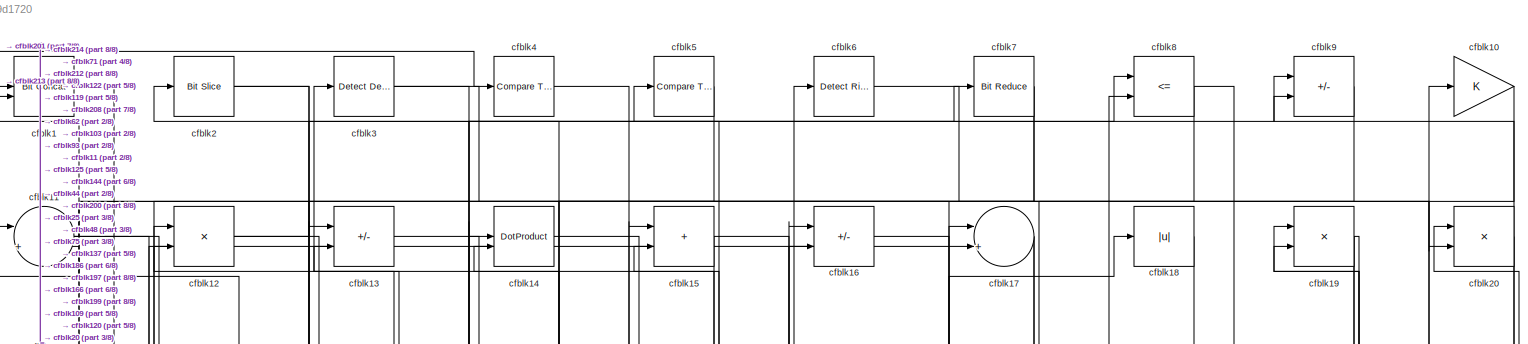
[diagram: root canvas - part 1/8, full width, top band]
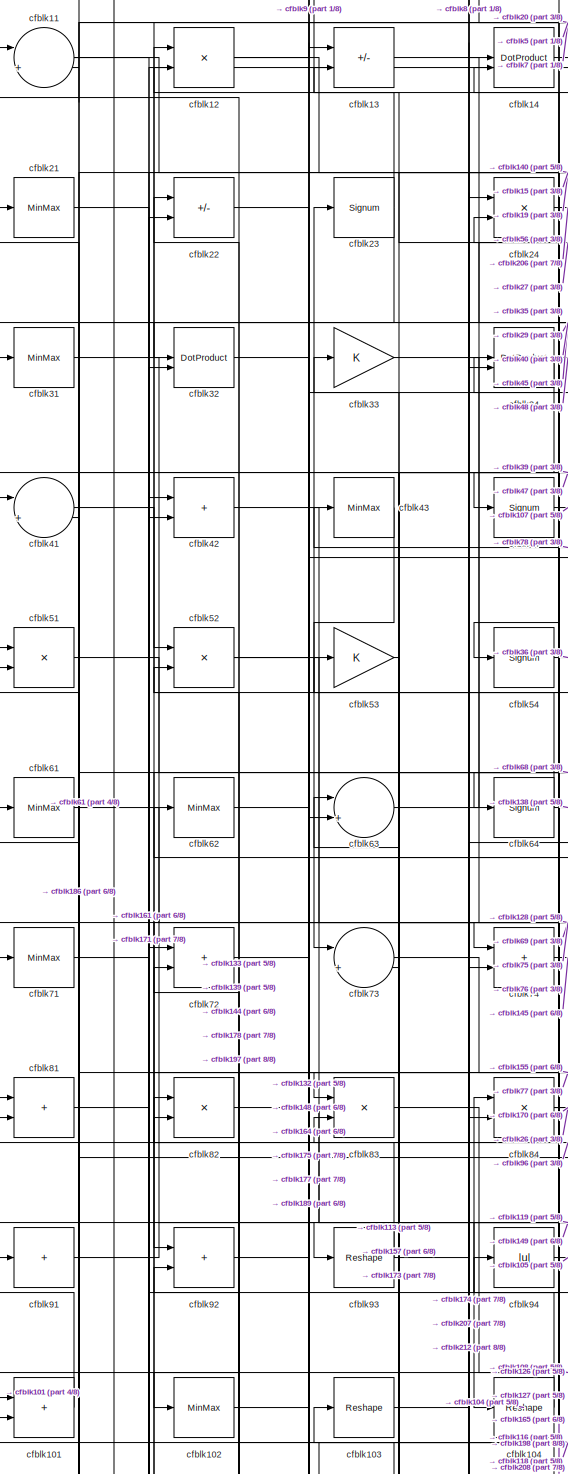
[diagram: root canvas - part 2/8, top left region]
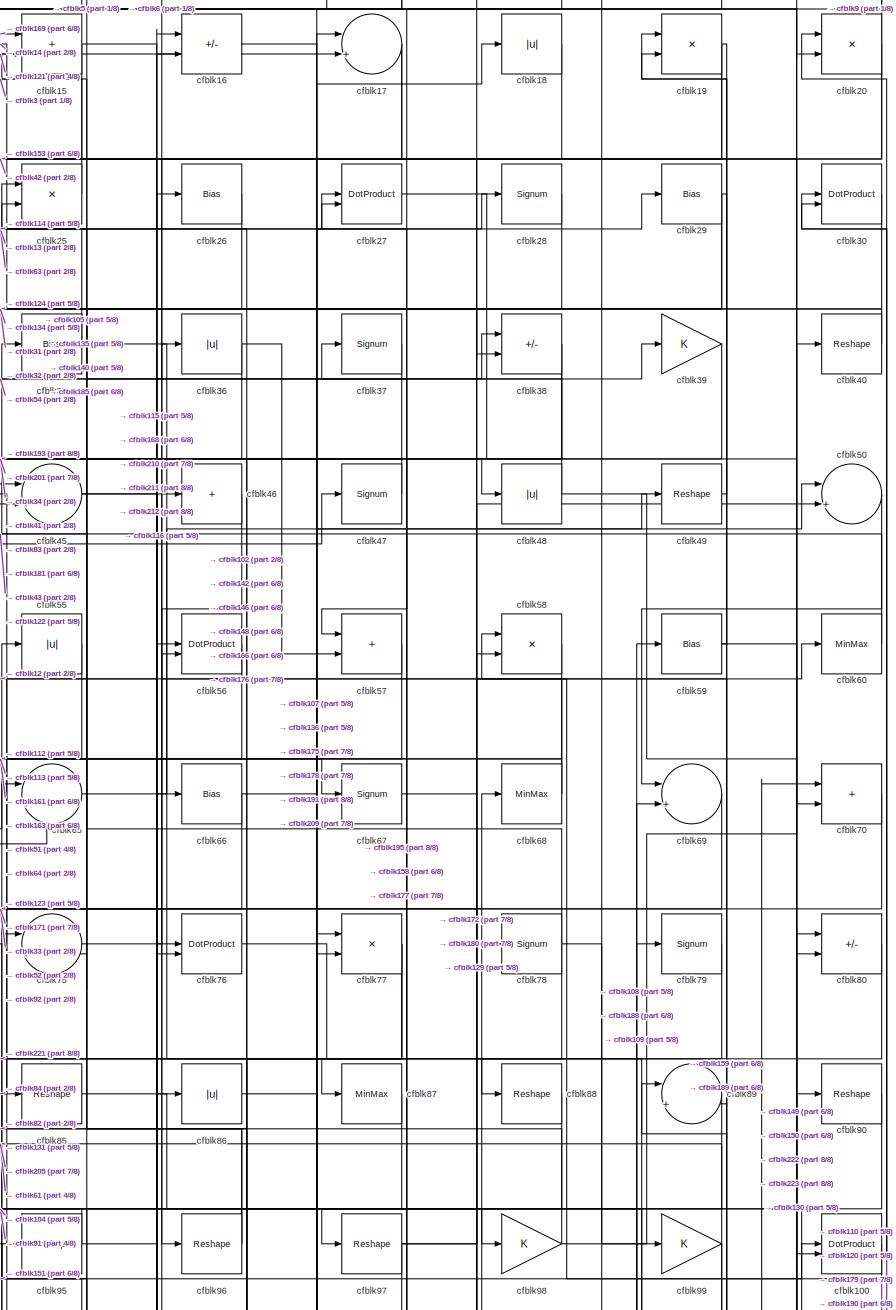
[diagram: root canvas - part 3/8, top right region]
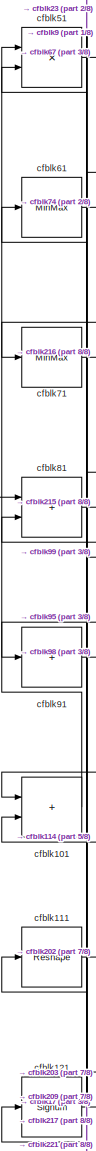
[diagram: root canvas - part 4/8, middle left region]
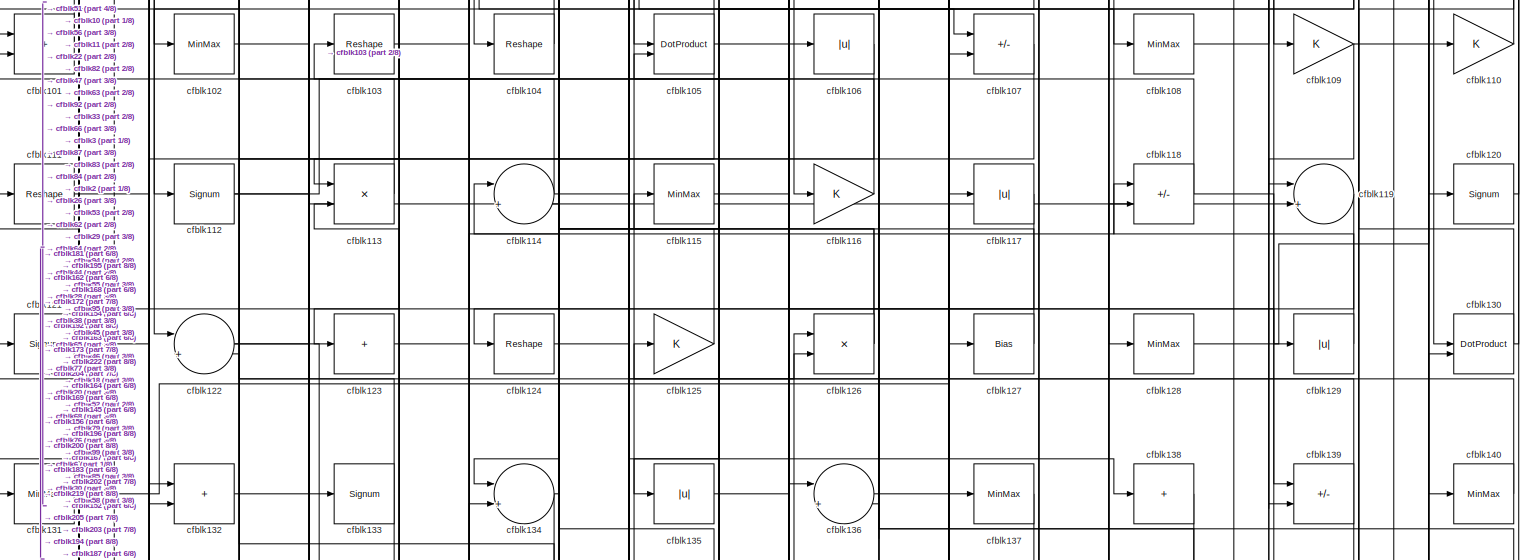
[diagram: root canvas - part 5/8, full width, middle band]
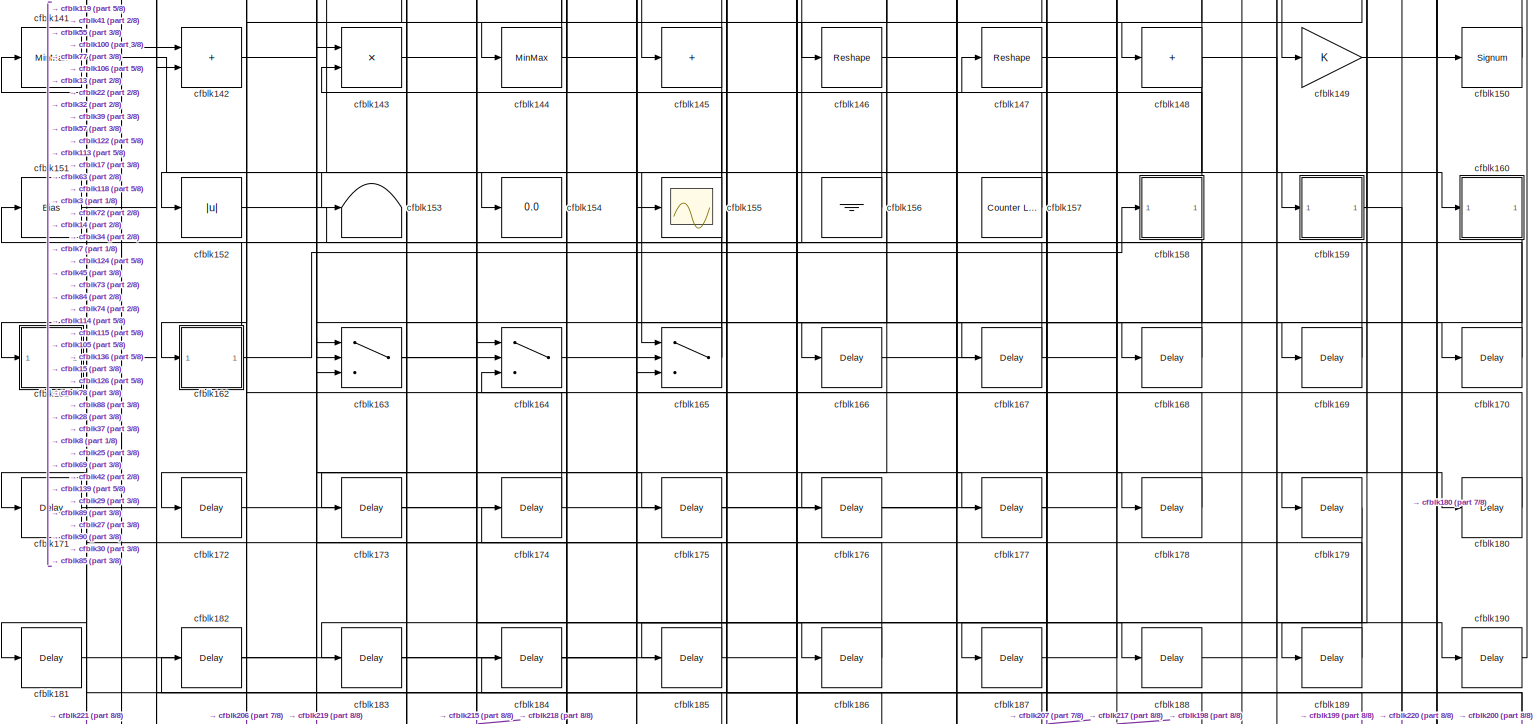
[diagram: root canvas - part 6/8, full width, bottom band]
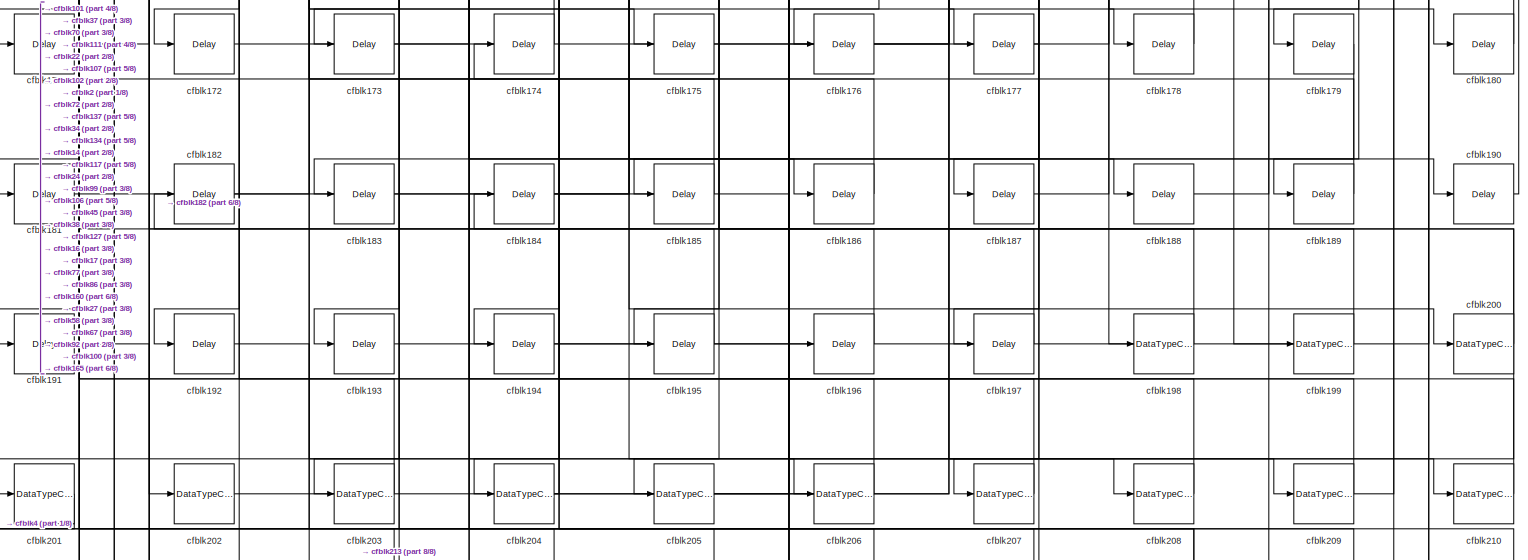
[diagram: root canvas - part 7/8, full width, bottom band]
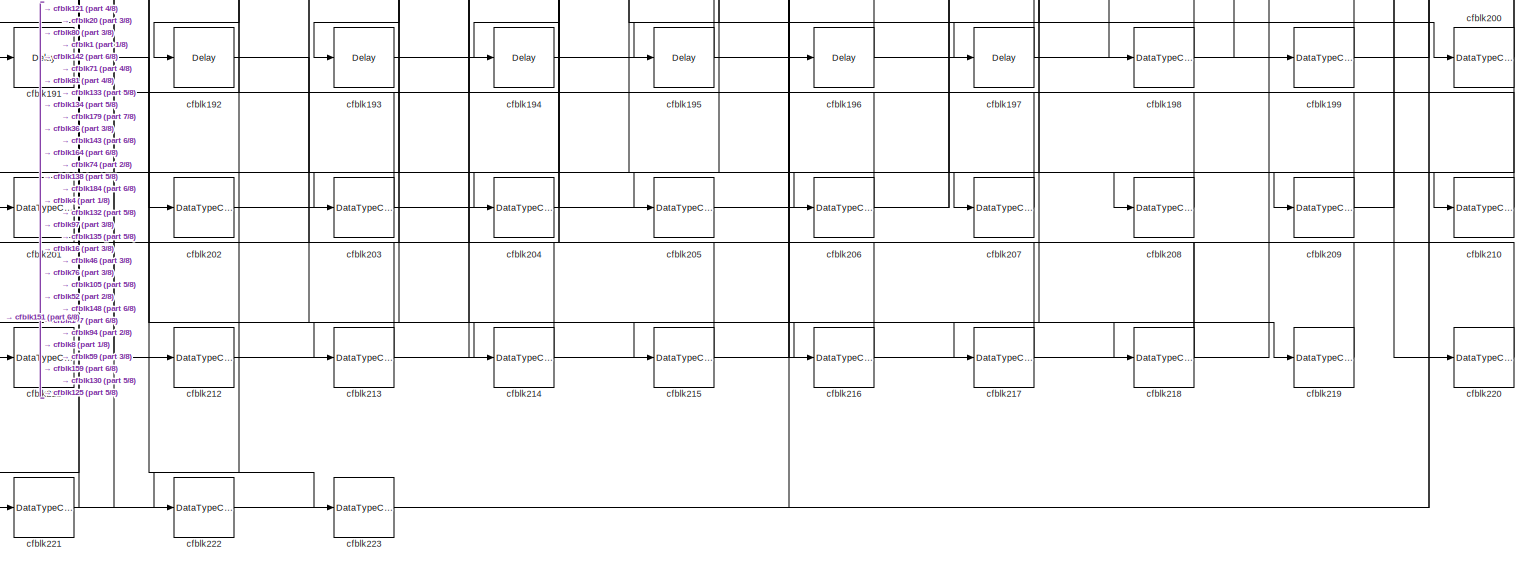
[diagram: root canvas - part 8/8, full width, bottom band]
MODEL slx_316e2a9d1720
KIND model
CONFIG AbsTol = auto
CONFIG EnableMultiTasking = off
CONFIG FixedStep = auto
CONFIG MaxStep = auto
CONFIG MinStep = auto
CONFIG RelTol = 1e-3
CONFIG SampleTimeConstraint = Unconstrained
CONFIG SolverName = VariableStepAuto
CONFIG StartTime = 0.0
CONFIG StopTime = 10.0
BLOCK [Reference] cfblk1  REF=hdlsllib/Logic and Bit
Operations/Bit Concat
  SourceBlock = hdlsllib/Logic and Bit\nOperations/Bit Concat
  SourceType = Bit Concat
BLOCK [Gain] cfblk10
BLOCK [DotProduct] cfblk100
  OutDataTypeStr = Inherit: Inherit via internal rule
BLOCK [Sum] cfblk101
  IconShape = rectangular
BLOCK [MinMax] cfblk102
BLOCK [Reshape] cfblk103
BLOCK [Reshape] cfblk104
BLOCK [DotProduct] cfblk105
  OutDataTypeStr = Inherit: Inherit via internal rule
BLOCK [Abs] cfblk106
  SaturateOnIntegerOverflow = off
BLOCK [Sum] cfblk107
  IconShape = rectangular
  Inputs = +-
BLOCK [MinMax] cfblk108
BLOCK [Gain] cfblk109
BLOCK [Sum] cfblk11
  Inputs = |++
BLOCK [Gain] cfblk110
BLOCK [Reshape] cfblk111
BLOCK [Signum] cfblk112
BLOCK [Product] cfblk113
  Inputs = */
  RndMeth = Zero
  SaturateOnIntegerOverflow = on
BLOCK [Sum] cfblk114
  Inputs = |++
BLOCK [MinMax] cfblk115
BLOCK [Gain] cfblk116
BLOCK [Abs] cfblk117
  SaturateOnIntegerOverflow = off
BLOCK [Sum] cfblk118
  IconShape = rectangular
  Inputs = +-
BLOCK [Sum] cfblk119
  Inputs = |++
BLOCK [Product] cfblk12
  Inputs = */
  RndMeth = Zero
  SaturateOnIntegerOverflow = on
BLOCK [Signum] cfblk120
BLOCK [Signum] cfblk121
BLOCK [Sum] cfblk122
  Inputs = |++
BLOCK [Sum] cfblk123
  IconShape = rectangular
  Inputs = +
BLOCK [Reshape] cfblk124
BLOCK [Gain] cfblk125
BLOCK [Product] cfblk126
  Inputs = */
  RndMeth = Zero
  SaturateOnIntegerOverflow = on
BLOCK [Bias] cfblk127
  Bias = 0.0
  SaturateOnIntegerOverflow = off
BLOCK [MinMax] cfblk128
BLOCK [Abs] cfblk129
  SaturateOnIntegerOverflow = off
BLOCK [Sum] cfblk13
  IconShape = rectangular
  Inputs = +-
BLOCK [DotProduct] cfblk130
  OutDataTypeStr = Inherit: Inherit via internal rule
BLOCK [MinMax] cfblk131
BLOCK [Sum] cfblk132
  IconShape = rectangular
BLOCK [Signum] cfblk133
BLOCK [Sum] cfblk134
  Inputs = |++
BLOCK [Abs] cfblk135
  SaturateOnIntegerOverflow = off
BLOCK [Sum] cfblk136
  Inputs = |++
BLOCK [MinMax] cfblk137
BLOCK [Sum] cfblk138
  IconShape = rectangular
  Inputs = +
BLOCK [Sum] cfblk139
  IconShape = rectangular
  Inputs = +-
BLOCK [DotProduct] cfblk14
  OutDataTypeStr = Inherit: Inherit via internal rule
BLOCK [MinMax] cfblk140
BLOCK [MinMax] cfblk141
BLOCK [Sum] cfblk142
  IconShape = rectangular
BLOCK [Product] cfblk143
  Inputs = */
  RndMeth = Zero
  SaturateOnIntegerOverflow = on
BLOCK [MinMax] cfblk144
BLOCK [Sum] cfblk145
  IconShape = rectangular
  Inputs = +
BLOCK [Reshape] cfblk146
BLOCK [Reshape] cfblk147
BLOCK [Sum] cfblk148
  IconShape = rectangular
  Inputs = +
BLOCK [Gain] cfblk149
BLOCK [Sum] cfblk15
  IconShape = rectangular
BLOCK [Signum] cfblk150
BLOCK [Bias] cfblk151
  Bias = 0.0
  SaturateOnIntegerOverflow = off
BLOCK [Abs] cfblk152
  SaturateOnIntegerOverflow = off
BLOCK [Terminator] cfblk153
BLOCK [Display] cfblk154
  Decimation = 1
BLOCK [Scope] cfblk155
  Floating = off
  NumInputPorts = 1
  ScopeSpecificationString = Simulink.scopes.TimeScopeBlockCfg('CurrentConfiguration', extmgr.ConfigurationSet(extmgr.Configuration('Core','General UI',true),extmgr.Configuration('Core','Source UI',true),extmgr.Configuration('Sources','WiredSimulink',true,'DataLoggingVariableName','ScopeData2','DataLoggingSaveFormat','Array','DataLoggingLimitDataPoints',true,'DataLoggingDecimation','1'),extmgr.Configuration('Visuals','Time Do...<+868ch>
BLOCK [Ground] cfblk156
BLOCK [Reference] cfblk157  REF=hdlsllib/Sources/Counter
Limited
  SourceBlock = hdlsllib/Sources/Counter\nLimited
  SourceType = Counter Limited
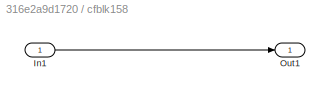
BLOCK [SubSystem] cfblk158
  LibrarySourceBlock = hdlsllib/Ports &\nSubsystems/Subsystem
BLOCK [Inport] cfblk158/In1
BLOCK [Outport] cfblk158/Out1
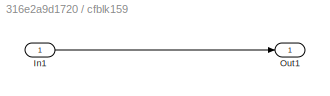
BLOCK [SubSystem] cfblk159
  LibrarySourceBlock = hdlsllib/Ports &\nSubsystems/Subsystem
BLOCK [Inport] cfblk159/In1
BLOCK [Outport] cfblk159/Out1
BLOCK [Sum] cfblk16
  IconShape = rectangular
  Inputs = +-
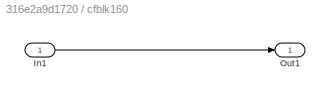
BLOCK [SubSystem] cfblk160
  LibrarySourceBlock = hdlsllib/Ports &\nSubsystems/Subsystem
BLOCK [Inport] cfblk160/In1
BLOCK [Outport] cfblk160/Out1
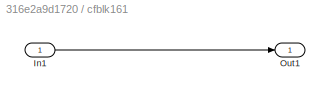
BLOCK [SubSystem] cfblk161
  LibrarySourceBlock = hdlsllib/Ports &\nSubsystems/Subsystem
BLOCK [Inport] cfblk161/In1
BLOCK [Outport] cfblk161/Out1
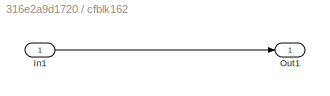
BLOCK [SubSystem] cfblk162
  LibrarySourceBlock = hdlsllib/Ports &\nSubsystems/Subsystem
BLOCK [Inport] cfblk162/In1
BLOCK [Outport] cfblk162/Out1
BLOCK [Switch] cfblk163
  InputSameDT = off
  SaturateOnIntegerOverflow = off
BLOCK [Switch] cfblk164
  InputSameDT = off
  SaturateOnIntegerOverflow = off
BLOCK [Switch] cfblk165
  InputSameDT = off
  SaturateOnIntegerOverflow = off
BLOCK [Delay] cfblk166
  InputPortMap = u0
  SampleTime = 1
BLOCK [Delay] cfblk167
  InputPortMap = u0
  SampleTime = 1
BLOCK [Delay] cfblk168
  InputPortMap = u0
  SampleTime = 1
BLOCK [Delay] cfblk169
  InputPortMap = u0
  SampleTime = 1
BLOCK [Sum] cfblk17
  Inputs = |++
BLOCK [Delay] cfblk170
  InputPortMap = u0
  SampleTime = 1
BLOCK [Delay] cfblk171
  InputPortMap = u0
  SampleTime = 1
BLOCK [Delay] cfblk172
  InputPortMap = u0
  SampleTime = 1
BLOCK [Delay] cfblk173
  InputPortMap = u0
  SampleTime = 1
BLOCK [Delay] cfblk174
  InputPortMap = u0
  SampleTime = 1
BLOCK [Delay] cfblk175
  InputPortMap = u0
  SampleTime = 1
BLOCK [Delay] cfblk176
  InputPortMap = u0
  SampleTime = 1
BLOCK [Delay] cfblk177
  InputPortMap = u0
  SampleTime = 1
BLOCK [Delay] cfblk178
  InputPortMap = u0
  SampleTime = 1
BLOCK [Delay] cfblk179
  InputPortMap = u0
  SampleTime = 1
BLOCK [Abs] cfblk18
  SaturateOnIntegerOverflow = off
BLOCK [Delay] cfblk180
  InputPortMap = u0
  SampleTime = 1
BLOCK [Delay] cfblk181
  InputPortMap = u0
  SampleTime = 1
BLOCK [Delay] cfblk182
  InputPortMap = u0
  SampleTime = 1
BLOCK [Delay] cfblk183
  InputPortMap = u0
  SampleTime = 1
BLOCK [Delay] cfblk184
  InputPortMap = u0
  SampleTime = 1
BLOCK [Delay] cfblk185
  InputPortMap = u0
  SampleTime = 1
BLOCK [Delay] cfblk186
  InputPortMap = u0
  SampleTime = 1
BLOCK [Delay] cfblk187
  InputPortMap = u0
  SampleTime = 1
BLOCK [Delay] cfblk188
  InputPortMap = u0
  SampleTime = 1
BLOCK [Delay] cfblk189
  InputPortMap = u0
  SampleTime = 1
BLOCK [Product] cfblk19
  Inputs = */
  RndMeth = Zero
  SaturateOnIntegerOverflow = on
BLOCK [Delay] cfblk190
  InputPortMap = u0
  SampleTime = 1
BLOCK [Delay] cfblk191
  InputPortMap = u0
  SampleTime = 1
BLOCK [Delay] cfblk192
  InputPortMap = u0
  SampleTime = 1
BLOCK [Delay] cfblk193
  InputPortMap = u0
  SampleTime = 1
BLOCK [Delay] cfblk194
  InputPortMap = u0
  SampleTime = 1
BLOCK [Delay] cfblk195
  InputPortMap = u0
  SampleTime = 1
BLOCK [Delay] cfblk196
  InputPortMap = u0
  SampleTime = 1
BLOCK [Delay] cfblk197
  InputPortMap = u0
  SampleTime = 1
BLOCK [DataTypeConversion] cfblk198
  OutDataTypeStr = uint8
  RndMeth = Floor
  SaturateOnIntegerOverflow = off
BLOCK [DataTypeConversion] cfblk199
  OutDataTypeStr = uint8
  RndMeth = Floor
  SaturateOnIntegerOverflow = off
BLOCK [Reference] cfblk2  REF=hdlsllib/Logic and Bit
Operations/Bit Slice
  SourceBlock = hdlsllib/Logic and Bit\nOperations/Bit Slice
  SourceType = Bit Slice
BLOCK [Product] cfblk20
  Inputs = */
  RndMeth = Zero
  SaturateOnIntegerOverflow = on
BLOCK [DataTypeConversion] cfblk200
  RndMeth = Floor
  SaturateOnIntegerOverflow = off
BLOCK [DataTypeConversion] cfblk201
  OutDataTypeStr = uint8
  RndMeth = Floor
  SaturateOnIntegerOverflow = off
BLOCK [DataTypeConversion] cfblk202
  OutDataTypeStr = uint8
  RndMeth = Floor
  SaturateOnIntegerOverflow = off
BLOCK [DataTypeConversion] cfblk203
  OutDataTypeStr = uint8
  RndMeth = Floor
  SaturateOnIntegerOverflow = off
BLOCK [DataTypeConversion] cfblk204
  RndMeth = Floor
  SaturateOnIntegerOverflow = off
BLOCK [DataTypeConversion] cfblk205
  OutDataTypeStr = uint8
  RndMeth = Floor
  SaturateOnIntegerOverflow = off
BLOCK [DataTypeConversion] cfblk206
  OutDataTypeStr = uint8
  RndMeth = Floor
  SaturateOnIntegerOverflow = off
BLOCK [DataTypeConversion] cfblk207
  OutDataTypeStr = uint8
  RndMeth = Floor
  SaturateOnIntegerOverflow = off
BLOCK [DataTypeConversion] cfblk208
  OutDataTypeStr = uint8
  RndMeth = Floor
  SaturateOnIntegerOverflow = off
BLOCK [DataTypeConversion] cfblk209
  RndMeth = Floor
  SaturateOnIntegerOverflow = off
BLOCK [MinMax] cfblk21
BLOCK [DataTypeConversion] cfblk210
  OutDataTypeStr = uint8
  RndMeth = Floor
  SaturateOnIntegerOverflow = off
BLOCK [DataTypeConversion] cfblk211
  OutDataTypeStr = uint8
  RndMeth = Floor
  SaturateOnIntegerOverflow = off
BLOCK [DataTypeConversion] cfblk212
  RndMeth = Floor
  SaturateOnIntegerOverflow = off
BLOCK [DataTypeConversion] cfblk213
  OutDataTypeStr = uint8
  RndMeth = Floor
  SaturateOnIntegerOverflow = off
BLOCK [DataTypeConversion] cfblk214
  OutDataTypeStr = uint8
  RndMeth = Floor
  SaturateOnIntegerOverflow = off
BLOCK [DataTypeConversion] cfblk215
  OutDataTypeStr = uint8
  RndMeth = Floor
  SaturateOnIntegerOverflow = off
BLOCK [DataTypeConversion] cfblk216
  OutDataTypeStr = uint8
  RndMeth = Floor
  SaturateOnIntegerOverflow = off
BLOCK [DataTypeConversion] cfblk217
  OutDataTypeStr = uint8
  RndMeth = Floor
  SaturateOnIntegerOverflow = off
BLOCK [DataTypeConversion] cfblk218
  RndMeth = Floor
  SaturateOnIntegerOverflow = off
BLOCK [DataTypeConversion] cfblk219
  OutDataTypeStr = uint8
  RndMeth = Floor
  SaturateOnIntegerOverflow = off
BLOCK [Sum] cfblk22
  IconShape = rectangular
  Inputs = +-
BLOCK [DataTypeConversion] cfblk220
  OutDataTypeStr = uint8
  RndMeth = Floor
  SaturateOnIntegerOverflow = off
BLOCK [DataTypeConversion] cfblk221
  RndMeth = Floor
  SaturateOnIntegerOverflow = off
BLOCK [DataTypeConversion] cfblk222
  OutDataTypeStr = uint8
  RndMeth = Floor
  SaturateOnIntegerOverflow = off
BLOCK [DataTypeConversion] cfblk223
  OutDataTypeStr = uint8
  RndMeth = Floor
  SaturateOnIntegerOverflow = off
BLOCK [Signum] cfblk23
BLOCK [Product] cfblk24
  Inputs = */
  RndMeth = Zero
  SaturateOnIntegerOverflow = on
BLOCK [Product] cfblk25
  Inputs = */
  RndMeth = Zero
  SaturateOnIntegerOverflow = on
BLOCK [Bias] cfblk26
  Bias = 0.0
  SaturateOnIntegerOverflow = off
BLOCK [DotProduct] cfblk27
  OutDataTypeStr = Inherit: Inherit via internal rule
BLOCK [Signum] cfblk28
BLOCK [Bias] cfblk29
  Bias = 0.0
  SaturateOnIntegerOverflow = off
BLOCK [Reference] cfblk3  REF=simulink/Logic and Bit
Operations/Detect
Decrease
  LibrarySourceBlock = hdlsllib/Logic and Bit\nOperations/Detect\nDecrease
  SourceBlock = simulink/Logic and Bit\nOperations/Detect\nDecrease
  SourceType = Detect Decrease
BLOCK [DotProduct] cfblk30
  OutDataTypeStr = Inherit: Inherit via internal rule
BLOCK [MinMax] cfblk31
BLOCK [DotProduct] cfblk32
  OutDataTypeStr = Inherit: Inherit via internal rule
BLOCK [Gain] cfblk33
BLOCK [DotProduct] cfblk34
  OutDataTypeStr = Inherit: Inherit via internal rule
BLOCK [Bias] cfblk35
  Bias = 0.0
  SaturateOnIntegerOverflow = off
BLOCK [Abs] cfblk36
  SaturateOnIntegerOverflow = off
BLOCK [Signum] cfblk37
BLOCK [Sum] cfblk38
  IconShape = rectangular
  Inputs = +-
BLOCK [Gain] cfblk39
BLOCK [Reference] cfblk4  REF=hdlsllib/Logic and Bit
Operations/Compare
To Zero
  SourceBlock = hdlsllib/Logic and Bit\nOperations/Compare\nTo Zero
  SourceType = Compare To Zero
BLOCK [Reshape] cfblk40
BLOCK [Sum] cfblk41
  Inputs = |++
BLOCK [Sum] cfblk42
  IconShape = rectangular
BLOCK [MinMax] cfblk43
BLOCK [Signum] cfblk44
BLOCK [Sum] cfblk45
  Inputs = |++
BLOCK [Sum] cfblk46
  IconShape = rectangular
  Inputs = +
BLOCK [Signum] cfblk47
BLOCK [Abs] cfblk48
  SaturateOnIntegerOverflow = off
BLOCK [Reshape] cfblk49
BLOCK [Reference] cfblk5  REF=hdlsllib/Logic and Bit
Operations/Compare
To Constant
  SourceBlock = hdlsllib/Logic and Bit\nOperations/Compare\nTo Constant
  SourceType = Compare To Constant
BLOCK [Sum] cfblk50
  Inputs = |++
BLOCK [Product] cfblk51
  Inputs = */
  RndMeth = Zero
  SaturateOnIntegerOverflow = on
BLOCK [Product] cfblk52
  Inputs = */
  RndMeth = Zero
  SaturateOnIntegerOverflow = on
BLOCK [Gain] cfblk53
BLOCK [Signum] cfblk54
BLOCK [Abs] cfblk55
  SaturateOnIntegerOverflow = off
BLOCK [DotProduct] cfblk56
  OutDataTypeStr = Inherit: Inherit via internal rule
BLOCK [Sum] cfblk57
  IconShape = rectangular
BLOCK [Product] cfblk58
  Inputs = */
  RndMeth = Zero
  SaturateOnIntegerOverflow = on
BLOCK [Bias] cfblk59
  Bias = 0.0
  SaturateOnIntegerOverflow = off
BLOCK [Reference] cfblk6  REF=hdlsllib/Logic and Bit
Operations/Detect Rise
Nonnegative
  SourceBlock = hdlsllib/Logic and Bit\nOperations/Detect Rise\nNonnegative
  SourceType = Detect Rise Nonnegative
BLOCK [MinMax] cfblk60
BLOCK [MinMax] cfblk61
BLOCK [MinMax] cfblk62
BLOCK [Sum] cfblk63
  Inputs = |++
BLOCK [Signum] cfblk64
BLOCK [Sum] cfblk65
  Inputs = |++
BLOCK [Bias] cfblk66
  Bias = 0.0
  SaturateOnIntegerOverflow = off
BLOCK [Signum] cfblk67
BLOCK [MinMax] cfblk68
BLOCK [Sum] cfblk69
  Inputs = |++
BLOCK [Reference] cfblk7  REF=hdlsllib/Logic and Bit
Operations/Bit Reduce
  SourceBlock = hdlsllib/Logic and Bit\nOperations/Bit Reduce
  SourceType = Bit Reduce
BLOCK [Sum] cfblk70
  IconShape = rectangular
BLOCK [MinMax] cfblk71
BLOCK [Sum] cfblk72
  IconShape = rectangular
BLOCK [Sum] cfblk73
  Inputs = |++
BLOCK [Sum] cfblk74
  IconShape = rectangular
BLOCK [Sum] cfblk75
  Inputs = |++
BLOCK [DotProduct] cfblk76
  OutDataTypeStr = Inherit: Inherit via internal rule
BLOCK [Product] cfblk77
  Inputs = */
  RndMeth = Zero
  SaturateOnIntegerOverflow = on
BLOCK [Signum] cfblk78
BLOCK [Signum] cfblk79
BLOCK [RelationalOperator] cfblk8
  InputSameDT = off
  Operator = <=
  OutDataTypeStr = boolean
BLOCK [Sum] cfblk80
  IconShape = rectangular
  Inputs = +-
BLOCK [Sum] cfblk81
  IconShape = rectangular
BLOCK [Product] cfblk82
  Inputs = */
  RndMeth = Zero
  SaturateOnIntegerOverflow = on
BLOCK [Product] cfblk83
  Inputs = */
  RndMeth = Zero
  SaturateOnIntegerOverflow = on
BLOCK [Product] cfblk84
  Inputs = */
  RndMeth = Zero
  SaturateOnIntegerOverflow = on
BLOCK [Reshape] cfblk85
BLOCK [Abs] cfblk86
  SaturateOnIntegerOverflow = off
BLOCK [MinMax] cfblk87
BLOCK [Reshape] cfblk88
BLOCK [Sum] cfblk89
  Inputs = |++
BLOCK [Sum] cfblk9
  IconShape = rectangular
  Inputs = +-
BLOCK [Reshape] cfblk90
BLOCK [Sum] cfblk91
  IconShape = rectangular
  Inputs = +
BLOCK [Sum] cfblk92
  IconShape = rectangular
BLOCK [Reshape] cfblk93
BLOCK [Abs] cfblk94
  SaturateOnIntegerOverflow = off
BLOCK [Reshape] cfblk95
BLOCK [Reshape] cfblk96
BLOCK [Reshape] cfblk97
BLOCK [Gain] cfblk98
BLOCK [Gain] cfblk99
LINE cfblk100:1 -> cfblk179:1
LINE cfblk101:1 -> cfblk51:1
LINE cfblk102:1 -> cfblk175:1
LINE cfblk103:1 -> cfblk8:1
LINE cfblk104:1 -> cfblk84:1
NET cfblk105:1 -> cfblk132:2, cfblk167:1, cfblk55:1
LINE cfblk106:1 -> cfblk162:1
LINE cfblk107:1 -> cfblk172:1
LINE cfblk108:1 -> cfblk79:1
NET cfblk109:1 -> cfblk10:1, cfblk139:2
LINE cfblk10:1 -> cfblk122:1
LINE cfblk110:1 -> cfblk58:1
LINE cfblk111:1 -> cfblk202:1
NET cfblk112:1 -> cfblk65:2, cfblk66:1
LINE cfblk113:1 -> cfblk103:1
NET cfblk114:1 -> cfblk29:1, cfblk51:2
LINE cfblk115:1 -> cfblk38:1
LINE cfblk116:1 -> cfblk33:1
LINE cfblk117:1 -> cfblk204:1
NET cfblk118:1 -> cfblk139:1, cfblk82:1
LINE cfblk119:1 -> cfblk181:1
NET cfblk11:1 -> cfblk140:1, cfblk72:1
LINE cfblk120:1 -> cfblk20:1
LINE cfblk121:1 -> cfblk17:2
NET cfblk122:1 -> cfblk154:1, cfblk47:1
LINE cfblk123:1 -> cfblk65:1
LINE cfblk124:1 -> cfblk169:1
LINE cfblk125:1 -> cfblk2:1
NET cfblk126:1 -> cfblk53:1, cfblk83:2
LINE cfblk127:1 -> cfblk62:1
LINE cfblk128:1 -> cfblk110:1
LINE cfblk129:1 -> cfblk68:1
NET cfblk12:1 -> cfblk20:2, cfblk56:1
NET cfblk130:1 -> cfblk30:1, cfblk56:2
LINE cfblk131:1 -> cfblk77:2
LINE cfblk132:1 -> cfblk63:2
NET cfblk133:1 -> cfblk192:1, cfblk22:1
NET cfblk134:1 -> cfblk114:2, cfblk222:1
LINE cfblk135:1 -> cfblk219:1
LINE cfblk136:1 -> cfblk18:1
LINE cfblk137:1 -> cfblk203:1
LINE cfblk138:1 -> cfblk194:1
NET cfblk139:1 -> cfblk11:1, cfblk187:1
LINE cfblk13:1 -> cfblk45:1
LINE cfblk140:1 -> cfblk95:1
LINE cfblk141:1 -> cfblk159:1
LINE cfblk142:1 -> cfblk39:1
LINE cfblk143:1 -> cfblk218:1
NET cfblk144:1 -> cfblk190:1, cfblk72:2
NET cfblk145:1 -> cfblk114:1, cfblk152:1
LINE cfblk146:1 -> cfblk28:1
LINE cfblk147:1 -> cfblk198:1
NET cfblk148:1 -> cfblk160:1, cfblk165:1, cfblk217:1, cfblk25:1
LINE cfblk149:1 -> cfblk90:1
LINE cfblk14:1 -> cfblk78:1
LINE cfblk150:1 -> cfblk85:1
LINE cfblk151:1 -> cfblk100:1
LINE cfblk152:1 -> cfblk126:1
LINE cfblk156:1 -> cfblk115:1
LINE cfblk157:1 -> cfblk63:1
LINE cfblk158/In1:1 -> cfblk158/Out1:1
NET cfblk158:1 -> cfblk183:1, cfblk37:1
LINE cfblk159/In1:1 -> cfblk159/Out1:1
NET cfblk159:1 -> cfblk220:1, cfblk89:1
NET cfblk15:1 -> cfblk168:1, cfblk42:2
LINE cfblk160/In1:1 -> cfblk160/Out1:1
LINE cfblk160:1 -> cfblk207:1
LINE cfblk161/In1:1 -> cfblk161/Out1:1
LINE cfblk161:1 -> cfblk32:2
LINE cfblk162/In1:1 -> cfblk162/Out1:1
NET cfblk162:1 -> cfblk141:1, cfblk158:1
NET cfblk163:1 -> cfblk118:1, cfblk188:1
LINE cfblk164:1 -> cfblk126:2
NET cfblk165:1 -> cfblk14:2, cfblk34:1
LINE cfblk166:1 -> cfblk8:2
LINE cfblk167:1 -> cfblk113:2
LINE cfblk168:1 -> cfblk122:2
LINE cfblk169:1 -> cfblk15:1
LINE cfblk16:1 -> cfblk209:1
LINE cfblk170:1 -> cfblk42:1
LINE cfblk171:1 -> cfblk22:2
LINE cfblk172:1 -> cfblk58:2
LINE cfblk173:1 -> cfblk134:2
LINE cfblk174:1 -> cfblk14:1
LINE cfblk175:1 -> cfblk17:1
LINE cfblk176:1 -> cfblk77:1
LINE cfblk177:1 -> cfblk27:2
LINE cfblk178:1 -> cfblk92:2
LINE cfblk179:1 -> cfblk213:1
NET cfblk17:1 -> cfblk153:1, cfblk96:1
LINE cfblk180:1 -> cfblk165:2
LINE cfblk181:1 -> cfblk45:2
LINE cfblk182:1 -> cfblk163:3
LINE cfblk183:1 -> cfblk136:1
LINE cfblk184:1 -> cfblk165:3
LINE cfblk185:1 -> cfblk163:1
LINE cfblk186:1 -> cfblk41:2
LINE cfblk187:1 -> cfblk118:2
LINE cfblk188:1 -> cfblk69:2
LINE cfblk189:1 -> cfblk13:1
LINE cfblk18:1 -> cfblk38:2
LINE cfblk190:1 -> cfblk30:2
LINE cfblk191:1 -> cfblk223:1
LINE cfblk192:1 -> cfblk214:1
LINE cfblk193:1 -> cfblk76:1
LINE cfblk194:1 -> cfblk130:2
LINE cfblk195:1 -> cfblk132:1
LINE cfblk196:1 -> cfblk105:2
LINE cfblk197:1 -> cfblk52:2
LINE cfblk198:1 -> cfblk94:1
LINE cfblk199:1 -> cfblk147:1
NET cfblk19:1 -> cfblk34:2, cfblk54:1, cfblk89:2
LINE cfblk1:1 -> cfblk212:1
NET cfblk200:1 -> cfblk125:1, cfblk151:1, cfblk211:1
LINE cfblk201:1 -> cfblk4:1
LINE cfblk202:1 -> cfblk106:1
LINE cfblk203:1 -> cfblk111:1
NET cfblk204:1 -> cfblk127:1, cfblk174:1
LINE cfblk205:1 -> cfblk117:1
LINE cfblk206:1 -> cfblk182:1
LINE cfblk207:1 -> cfblk24:1
LINE cfblk208:1 -> cfblk24:2
NET cfblk209:1 -> cfblk101:2, cfblk70:1
NET cfblk20:1 -> cfblk107:2, cfblk191:1, cfblk9:2
LINE cfblk210:1 -> cfblk16:1
LINE cfblk211:1 -> cfblk16:2
NET cfblk212:1 -> cfblk46:1, cfblk59:1, cfblk74:2
LINE cfblk213:1 -> cfblk1:1
LINE cfblk214:1 -> cfblk1:2
LINE cfblk215:1 -> cfblk164:1
LINE cfblk216:1 -> cfblk81:1
LINE cfblk217:1 -> cfblk81:2
NET cfblk218:1 -> cfblk164:3, cfblk184:1
LINE cfblk219:1 -> cfblk143:1
LINE cfblk21:1 -> cfblk84:2
LINE cfblk220:1 -> cfblk143:2
NET cfblk221:1 -> cfblk121:1, cfblk142:1, cfblk196:1
LINE cfblk222:1 -> cfblk80:1
LINE cfblk223:1 -> cfblk80:2
LINE cfblk22:1 -> cfblk148:1
NET cfblk23:1 -> cfblk101:1, cfblk12:2
LINE cfblk24:1 -> cfblk206:1
LINE cfblk25:1 -> cfblk3:1
LINE cfblk26:1 -> cfblk124:1
LINE cfblk27:1 -> cfblk150:1
LINE cfblk28:1 -> cfblk135:1
NET cfblk29:1 -> cfblk189:1, cfblk31:1, cfblk75:2
NET cfblk2:1 -> cfblk119:2, cfblk208:1
LINE cfblk30:1 -> cfblk134:1
LINE cfblk31:1 -> cfblk93:1
LINE cfblk32:1 -> cfblk164:2
LINE cfblk33:1 -> cfblk76:2
NET cfblk34:1 -> cfblk173:1, cfblk48:1
NET cfblk35:1 -> cfblk13:2, cfblk87:1
NET cfblk36:1 -> cfblk193:1, cfblk57:2
LINE cfblk37:1 -> cfblk201:1
NET cfblk38:1 -> cfblk176:1, cfblk57:1
LINE cfblk39:1 -> cfblk83:1
NET cfblk3:1 -> cfblk137:1, cfblk186:1
LINE cfblk40:1 -> cfblk32:1
LINE cfblk41:1 -> cfblk52:1
LINE cfblk42:1 -> cfblk149:1
LINE cfblk43:1 -> cfblk73:1
LINE cfblk44:1 -> cfblk107:1
NET cfblk45:1 -> cfblk129:1, cfblk210:1
LINE cfblk46:1 -> cfblk116:1
LINE cfblk47:1 -> cfblk41:1
NET cfblk48:1 -> cfblk5:1, cfblk70:2
LINE cfblk49:1 -> cfblk19:1
LINE cfblk4:1 -> cfblk200:1
LINE cfblk50:1 -> cfblk69:1
LINE cfblk51:1 -> cfblk67:1
NET cfblk52:1 -> cfblk128:1, cfblk75:1
LINE cfblk53:1 -> cfblk73:2
LINE cfblk54:1 -> cfblk36:1
LINE cfblk55:1 -> cfblk161:1
LINE cfblk56:1 -> cfblk112:1
LINE cfblk57:1 -> cfblk163:2
LINE cfblk58:1 -> cfblk113:1
NET cfblk59:1 -> cfblk100:2, cfblk19:2
LINE cfblk5:1 -> cfblk44:1
LINE cfblk60:1 -> cfblk35:1
LINE cfblk61:1 -> cfblk74:1
LINE cfblk62:1 -> cfblk9:1
LINE cfblk63:1 -> cfblk27:1
NET cfblk64:1 -> cfblk138:1, cfblk23:1
LINE cfblk65:1 -> cfblk50:1
NET cfblk66:1 -> cfblk123:1, cfblk49:1
LINE cfblk67:1 -> cfblk180:1
NET cfblk68:1 -> cfblk12:1, cfblk64:1
LINE cfblk69:1 -> cfblk92:1
LINE cfblk6:1 -> cfblk120:1
LINE cfblk70:1 -> cfblk171:1
LINE cfblk71:1 -> cfblk216:1
LINE cfblk72:1 -> cfblk177:1
LINE cfblk73:1 -> cfblk155:1
LINE cfblk74:1 -> cfblk145:1
LINE cfblk75:1 -> cfblk6:1
LINE cfblk76:1 -> cfblk109:1
NET cfblk77:1 -> cfblk102:1, cfblk136:2, cfblk142:2
NET cfblk78:1 -> cfblk146:1, cfblk43:1, cfblk99:1
LINE cfblk79:1 -> cfblk88:1
NET cfblk7:1 -> cfblk11:2, cfblk144:1
LINE cfblk80:1 -> cfblk221:1
LINE cfblk81:1 -> cfblk215:1
LINE cfblk82:1 -> cfblk119:1
LINE cfblk83:1 -> cfblk108:1
NET cfblk84:1 -> cfblk170:1, cfblk26:1
LINE cfblk85:1 -> cfblk130:1
LINE cfblk86:1 -> cfblk178:1
LINE cfblk87:1 -> cfblk104:1
LINE cfblk88:1 -> cfblk166:1
LINE cfblk89:1 -> cfblk185:1
NET cfblk8:1 -> cfblk197:1, cfblk199:1
LINE cfblk90:1 -> cfblk97:1
LINE cfblk91:1 -> cfblk98:1
LINE cfblk92:1 -> cfblk133:1
NET cfblk93:1 -> cfblk21:1, cfblk7:1
LINE cfblk94:1 -> cfblk105:1
NET cfblk95:1 -> cfblk86:1, cfblk91:1
NET cfblk96:1 -> cfblk15:2, cfblk82:2
NET cfblk97:1 -> cfblk195:1, cfblk50:2, cfblk60:1
NET cfblk98:1 -> cfblk25:2, cfblk40:1
NET cfblk99:1 -> cfblk131:1, cfblk205:1, cfblk61:1
LINE cfblk9:1 -> cfblk71:1
note: NET lines group one-source signal fan-out (src -> all destinations, sorted); 1:1 wires keep LINE
